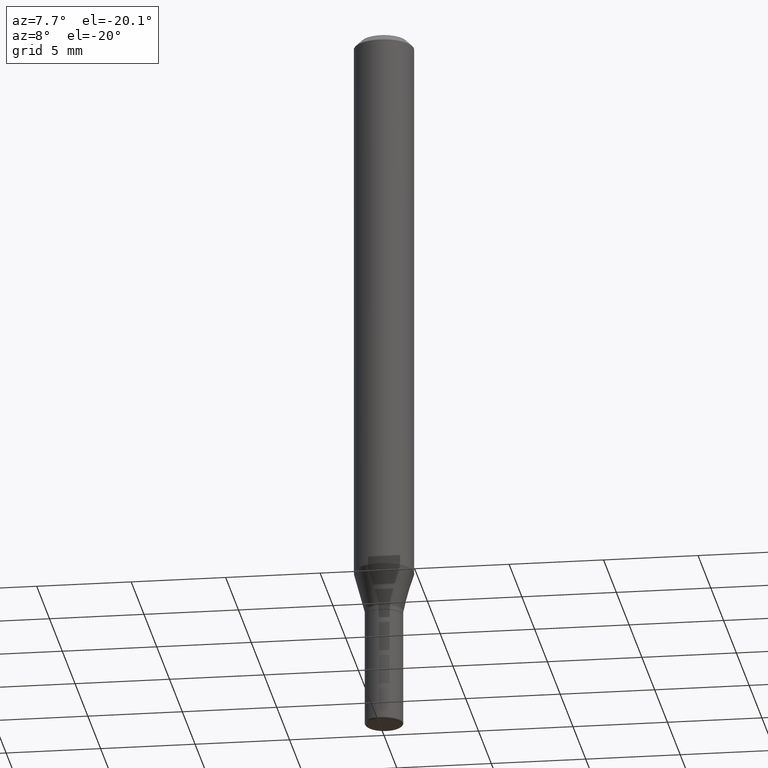
[diagram: clean part render]
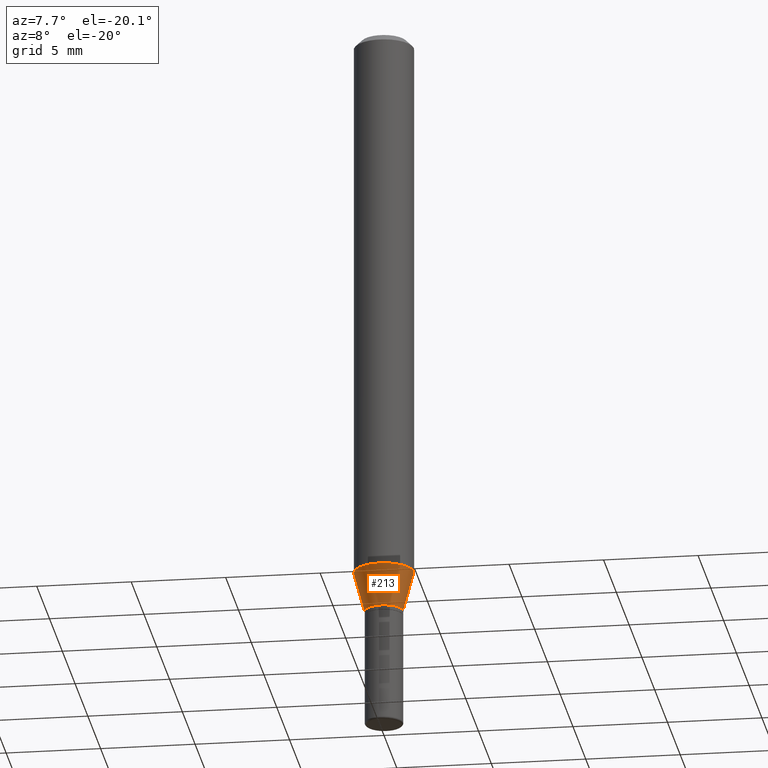
[diagram: same view with one face highlighted and labeled with its STEP entity id]
A machine part, auxiliary view. The second image highlights one B-rep face of the part: STEP entity #213.
In plain terms, the highlighted conical surface has half-angle 15 deg.
Its self-contained STEP definition (entity closure, byte-faithful):
#4 = DIRECTION ( 'NONE',  ( 1.000000000000000000, -6.982962677686260400E-15, 0.000000000000000000 ) ) ;
#19 = CIRCLE ( 'NONE', #233, 0.06250000000000000000 ) ;
#31 = DIRECTION ( 'NONE',  ( -0.2588190451025207395, 5.211531920934546309E-15, 0.9659258262890682012 ) ) ;
#39 = CARTESIAN_POINT ( 'NONE',  ( 3.056836007731420185E-29, -4.364351673553931682E-15, -1.249999999999999778 ) ) ;
#40 = AXIS2_PLACEMENT_3D ( 'NONE', #39, #289, #4 ) ;
#72 = ORIENTED_EDGE ( 'NONE', *, *, #284, .T. ) ;
#84 = CIRCLE ( 'NONE', #40, 0.03999999999999993144 ) ;
#120 = CARTESIAN_POINT ( 'NONE',  ( 2.851487196488745443E-29, -4.071167994173502356E-15, -1.166028856829699700 ) ) ;
#151 = ORIENTED_EDGE ( 'NONE', *, *, #335, .F. ) ;
#157 = CARTESIAN_POINT ( 'NONE',  ( 0.03999999999999993144, -4.643670180661380931E-15, -1.249999999999999778 ) ) ;
#158 = EDGE_CURVE ( 'NONE', #218, #348, #262, .T. ) ;
#164 = DIRECTION ( 'NONE',  ( 1.000000000000000000, -6.982962677686262766E-15, 0.000000000000000000 ) ) ;
#169 = CARTESIAN_POINT ( 'NONE',  ( 0.06250000000000000000, -4.507603161528894025E-15, -1.166028856829699700 ) ) ;
#205 = DIRECTION ( 'NONE',  ( 1.000000000000000000, -6.982962677686260400E-15, 0.000000000000000000 ) ) ;
#206 = ORIENTED_EDGE ( 'NONE', *, *, #226, .T. ) ;
#213 = ADVANCED_FACE ( 'NONE', ( #357 ), #437, .T. ) ;
#218 = VERTEX_POINT ( 'NONE', #323 ) ;
#226 = EDGE_CURVE ( 'NONE', #274, #345, #239, .T. ) ;
#230 = EDGE_LOOP ( 'NONE', ( #271, #72, #206, #151 ) ) ;
#233 = AXIS2_PLACEMENT_3D ( 'NONE', #120, #279, #164 ) ;
#234 = CARTESIAN_POINT ( 'NONE',  ( -0.03999999999999993144, -4.080134579249892145E-15, -1.249999999999999778 ) ) ;
#239 = LINE ( 'NONE', #326, #258 ) ;
#258 = VECTOR ( 'NONE', #482, 39.37007874015748854 ) ;
#262 = LINE ( 'NONE', #234, #447 ) ;
#271 = ORIENTED_EDGE ( 'NONE', *, *, #158, .F. ) ;
#274 = VERTEX_POINT ( 'NONE', #157 ) ;
#279 = DIRECTION ( 'NONE',  ( -2.445468806185136597E-29, 3.491481338843145583E-15, 1.000000000000000000 ) ) ;
#284 = EDGE_CURVE ( 'NONE', #218, #274, #84, .T. ) ;
#289 = DIRECTION ( 'NONE',  ( -2.445468806185136597E-29, 3.491481338843145583E-15, 1.000000000000000000 ) ) ;
#323 = CARTESIAN_POINT ( 'NONE',  ( -0.03999999999999993144, -3.853606681786666336E-15, -1.249999999999999778 ) ) ;
#325 = DIRECTION ( 'NONE',  ( -2.445468806185136597E-29, 3.491481338843145583E-15, 1.000000000000000000 ) ) ;
#326 = CARTESIAN_POINT ( 'NONE',  ( 0.03999999999999993144, -4.643670180661380931E-15, -1.249999999999999778 ) ) ;
#335 = EDGE_CURVE ( 'NONE', #348, #345, #19, .T. ) ;
#345 = VERTEX_POINT ( 'NONE', #169 ) ;
#348 = VERTEX_POINT ( 'NONE', #452 ) ;
#357 = FACE_OUTER_BOUND ( 'NONE', #230, .T. ) ;
#426 = AXIS2_PLACEMENT_3D ( 'NONE', #515, #325, #205 ) ;
#437 = CONICAL_SURFACE ( 'NONE', #426, 0.03999999999999993144, 0.2617993877991494633 ) ;
#447 = VECTOR ( 'NONE', #31, 39.37007874015748854 ) ;
#452 = CARTESIAN_POINT ( 'NONE',  ( -0.06250000000000000000, -3.627078784323440528E-15, -1.166028856829699700 ) ) ;
#482 = DIRECTION ( 'NONE',  ( 0.2588190451025207395, 1.565188264969626109E-15, 0.9659258262890682012 ) ) ;
#515 = CARTESIAN_POINT ( 'NONE',  ( 3.056836007731420185E-29, -4.364351673553931682E-15, -1.249999999999999778 ) ) ;